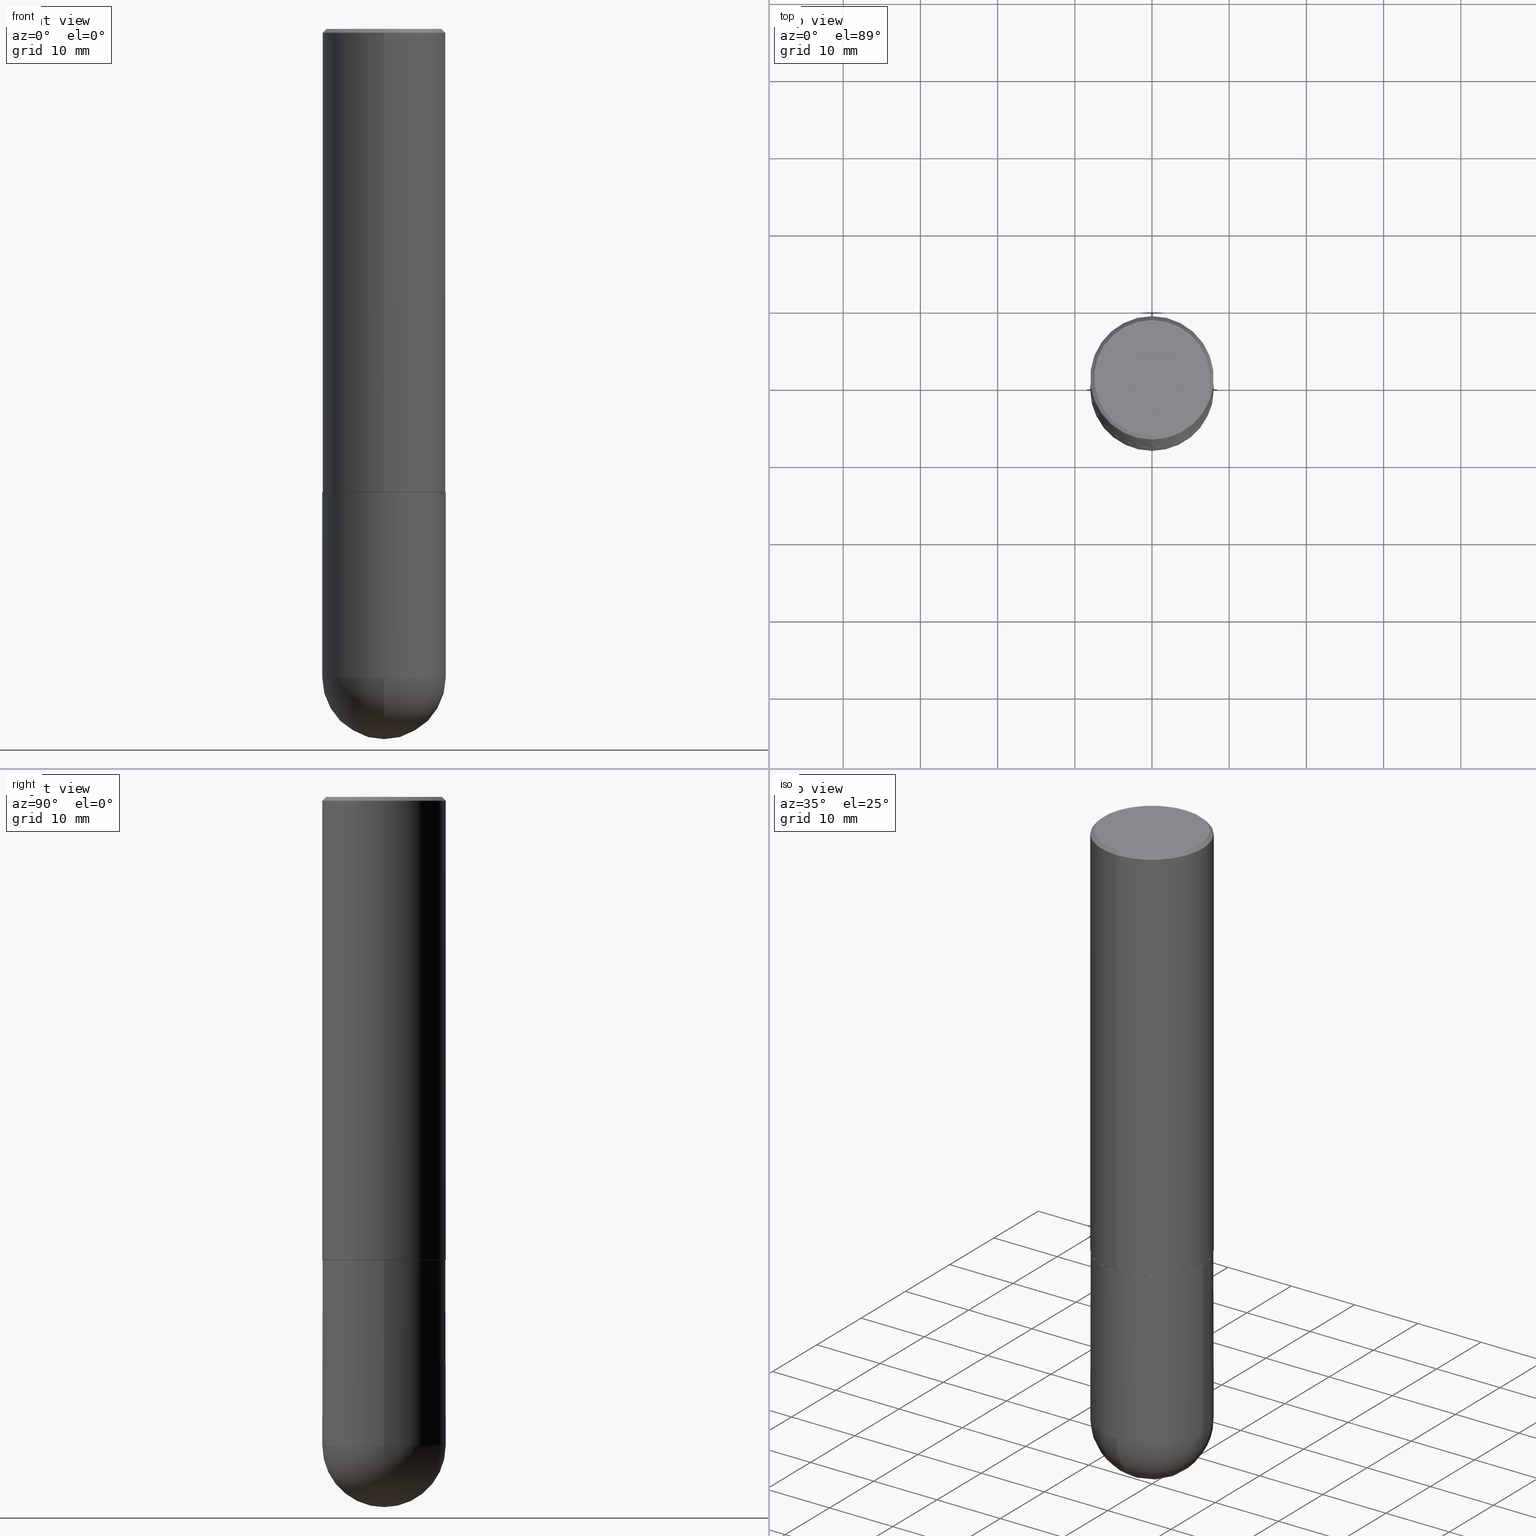
[diagram: canonical four-view strip — front | top / right | iso, engineering-drawing reading convention]
A machine part, canonical four-view strip (front | top / right | iso — engineering-drawing reading convention). The complete STEP part file that produces these views, byte-faithful:
ISO-10303-21;
HEADER;
FILE_DESCRIPTION (( 'STEP AP203' ),
    '1' );
FILE_NAME ('46348.STEP',
    '2024-04-10T11:49:54',
    ( '' ),
    ( '' ),
    'SwSTEP 2.0',
    'SolidWorks 2023',
    '' );
FILE_SCHEMA (( 'CONFIG_CONTROL_DESIGN' ));
ENDSEC;

DATA;
#1 = CARTESIAN_POINT ( 'NONE',  ( 2.237854346276465567E-15, 0.3149499999999920141, -2.361200000000000632 ) ) ;
#2 = CARTESIAN_POINT ( 'NONE',  ( 8.539834969227531055E-29, -1.310104265196035002E-14, -3.621999999999999886 ) ) ;
#3 = CARTESIAN_POINT ( 'NONE',  ( 8.087287615494557476E-29, -1.154650336162122627E-14, -3.307050000000000267 ) ) ;
#4 = CARTESIAN_POINT ( 'NONE',  ( 8.087287615494557476E-29, -1.154650336162122627E-14, -3.307050000000000267 ) ) ;
#5 = VERTEX_POINT ( 'NONE', #86 ) ;
#6 = CARTESIAN_POINT ( 'NONE',  ( -2.160713844398143363E-15, -0.3149500000000000632, -0.01999999999999896999 ) ) ;
#7 = ORIENTED_EDGE ( 'NONE', *, *, #259, .F. ) ;
#8 = DIRECTION ( 'NONE',  ( 1.000000000000000000, -6.982962677686269866E-15, 0.000000000000000000 ) ) ;
#9 = EDGE_LOOP ( 'NONE', ( #389, #94, #27, #160 ) ) ;
#10 = AXIS2_PLACEMENT_3D ( 'NONE', #3, #65, #25 ) ;
#11 = CIRCLE ( 'NONE', #155, 0.2949499999999997679 ) ;
#12 = EDGE_CURVE ( 'NONE', #233, #263, #284, .T. ) ;
#13 = EDGE_LOOP ( 'NONE', ( #321, #228, #324, #131 ) ) ;
#14 = CIRCLE ( 'NONE', #49, 0.3139500000000000624 ) ;
#15 = PERSON_AND_ORGANIZATION ( #243, #368 ) ;
#16 = CIRCLE ( 'NONE', #145, 0.3149500000000000077 ) ;
#17 = DIRECTION ( 'NONE',  ( -2.444863750846570139E-29, 3.492347812525583981E-15, 1.000000000000000000 ) ) ;
#18 = DATE_AND_TIME ( #81, #403 ) ;
#19 = CONICAL_SURFACE ( 'NONE', #357, 0.3149500000000000077, 0.7853981633974472798 ) ;
#20 = LOCAL_TIME ( 7, 49, 54.00000000000000000, #137 ) ;
#21 = CARTESIAN_POINT ( 'NONE',  ( 7.756167837580670108E-29, -1.202068572976127498E-14, -3.307049999999999823 ) ) ;
#22 = PRODUCT_RELATED_PRODUCT_CATEGORY ( 'detail', '', ( #83 ) ) ;
#23 = ORIENTED_EDGE ( 'NONE', *, *, #72, .T. ) ;
#24 =( GEOMETRIC_REPRESENTATION_CONTEXT ( 3 ) GLOBAL_UNCERTAINTY_ASSIGNED_CONTEXT ( ( #370 ) ) GLOBAL_UNIT_ASSIGNED_CONTEXT ( ( #169, #209, #334 ) ) REPRESENTATION_CONTEXT ( 'NONE', 'WORKASPACE' ) );
#25 = DIRECTION ( 'NONE',  ( 1.000000000000000000, -6.982962677686269866E-15, 0.000000000000000000 ) ) ;
#26 = DIRECTION ( 'NONE',  ( -7.105427357600999492E-15, -1.000000000000000000, 0.000000000000000000 ) ) ;
#27 = ORIENTED_EDGE ( 'NONE', *, *, #236, .T. ) ;
#28 = DIRECTION ( 'NONE',  ( -2.445468806185136597E-29, 3.491481338843145583E-15, 1.000000000000000000 ) ) ;
#29 = PLANE ( 'NONE',  #113 ) ;
#30 = ORIENTED_EDGE ( 'NONE', *, *, #386, .F. ) ;
#31 = CARTESIAN_POINT ( 'NONE',  ( 5.775257152249767833E-29, -8.249624002747934842E-15, -2.362199999999999633 ) ) ;
#32 = CARTESIAN_POINT ( 'NONE',  ( 0.000000000000000000, 0.000000000000000000, 0.000000000000000000 ) ) ;
#33 = CARTESIAN_POINT ( 'NONE',  ( 4.889727501693158145E-31, -6.984695625051194290E-17, -0.02000000000000007327 ) ) ;
#34 = PERSON_AND_ORGANIZATION ( #243, #368 ) ;
#35 = CARTESIAN_POINT ( 'NONE',  ( 0.000000000000000000, 0.000000000000000000, 0.000000000000000000 ) ) ;
#36 = FACE_OUTER_BOUND ( 'NONE', #405, .T. ) ;
#37 = VECTOR ( 'NONE', #222, 39.37007874015748143 ) ;
#38 = DIMENSIONAL_EXPONENTS ( 1.000000000000000000, 0.000000000000000000, 0.000000000000000000, 0.000000000000000000, 0.000000000000000000, 0.000000000000000000, 0.000000000000000000 ) ;
#39 = DIRECTION ( 'NONE',  ( -2.444863750846570139E-29, 3.492347812525583981E-15, 1.000000000000000000 ) ) ;
#40 = EDGE_LOOP ( 'NONE', ( #30, #212, #319, #197, #354 ) ) ;
#41 = ORIENTED_EDGE ( 'NONE', *, *, #273, .T. ) ;
#42 = ADVANCED_FACE ( 'NONE', ( #141 ), #306, .T. ) ;
#43 = VERTEX_POINT ( 'NONE', #173 ) ;
#44 = EDGE_CURVE ( 'NONE', #262, #211, #106, .T. ) ;
#45 = DIRECTION ( 'NONE',  ( 6.982962677686265922E-15, 1.000000000000000000, -3.496670018878889100E-15 ) ) ;
#46 = EDGE_LOOP ( 'NONE', ( #130, #301, #308, #105 ) ) ;
#47 = DATE_TIME_ROLE ( 'creation_date' ) ;
#48 = DIRECTION ( 'NONE',  ( 6.982962677686264344E-15, 1.000000000000000000, 0.000000000000000000 ) ) ;
#49 = AXIS2_PLACEMENT_3D ( 'NONE', #150, #312, #255 ) ;
#50 = COORDINATED_UNIVERSAL_TIME_OFFSET ( 5, 0, .BEHIND. ) ;
#51 = CIRCLE ( 'NONE', #275, 0.3149500000000000077 ) ;
#52 = SECURITY_CLASSIFICATION_LEVEL ( 'unclassified' ) ;
#53 = APPLICATION_CONTEXT ( 'configuration controlled 3d designs of mechanical parts and assemblies' ) ;
#54 = ADVANCED_FACE ( 'NONE', ( #55 ), #98, .F. ) ;
#55 = FACE_OUTER_BOUND ( 'NONE', #339, .T. ) ;
#56 = DIRECTION ( 'NONE',  ( -2.444863750846570139E-29, 3.492347812525583981E-15, 1.000000000000000000 ) ) ;
#57 = VERTEX_POINT ( 'NONE', #125 ) ;
#58 = EDGE_CURVE ( 'NONE', #189, #314, #266, .T. ) ;
#59 = DIRECTION ( 'NONE',  ( -1.000000000000000000, 6.982962677686265922E-15, -4.876176775795935793E-29 ) ) ;
#60 = LINE ( 'NONE', #283, #381 ) ;
#61 = FACE_OUTER_BOUND ( 'NONE', #371, .T. ) ;
#62 = FACE_OUTER_BOUND ( 'NONE', #92, .T. ) ;
#63 = DIRECTION ( 'NONE',  ( 1.000000000000000000, 0.000000000000000000, 0.000000000000000000 ) ) ;
#64 = EDGE_CURVE ( 'NONE', #211, #262, #14, .T. ) ;
#65 = DIRECTION ( 'NONE',  ( -2.445468806185136597E-29, 3.491481338843145583E-15, 1.000000000000000000 ) ) ;
#66 = DIRECTION ( 'NONE',  ( -2.444863750846570139E-29, 3.492347812525583981E-15, 1.000000000000000000 ) ) ;
#67 = CARTESIAN_POINT ( 'NONE',  ( 0.000000000000000000, 0.000000000000000000, 0.000000000000000000 ) ) ;
#68 = EDGE_LOOP ( 'NONE', ( #23, #394 ) ) ;
#69 = CLOSED_SHELL ( 'NONE', ( #199, #114, #42, #181, #373 ) ) ;
#70 = AXIS2_PLACEMENT_3D ( 'NONE', #33, #168, #214 ) ;
#71 = CARTESIAN_POINT ( 'NONE',  ( 5.775257152249767833E-29, -8.249624002747934842E-15, -2.362199999999999633 ) ) ;
#72 = EDGE_CURVE ( 'NONE', #43, #104, #144, .T. ) ;
#73 = VERTEX_POINT ( 'NONE', #286 ) ;
#74 = ORIENTED_EDGE ( 'NONE', *, *, #44, .F. ) ;
#75 = VECTOR ( 'NONE', #200, 39.37007874015748143 ) ;
#76 = MANIFOLD_SOLID_BREP ( 'Body-Move/Copy2[1]', #69 ) ;
#77 = COORDINATED_UNIVERSAL_TIME_OFFSET ( 5, 0, .BEHIND. ) ;
#78 = ORIENTED_EDGE ( 'NONE', *, *, #154, .F. ) ;
#79 = COORDINATED_UNIVERSAL_TIME_OFFSET ( 5, 0, .BEHIND. ) ;
#80 = CLOSED_SHELL ( 'NONE', ( #136, #205, #265, #234, #317, #264, #54, #383 ) ) ;
#81 = CALENDAR_DATE ( 2024, 10, 4 ) ;
#82 = CIRCLE ( 'NONE', #291, 0.3149500000000000077 ) ;
#83 = PRODUCT ( '46348', '46348', '', ( #247 ) ) ;
#84 = DIRECTION ( 'NONE',  ( -1.000000000000000000, 6.982962677686265133E-15, -4.883557194083112901E-29 ) ) ;
#85 = EDGE_CURVE ( 'NONE', #120, #143, #202, .T. ) ;
#86 = CARTESIAN_POINT ( 'NONE',  ( -2.237854346276355915E-15, -0.3149500000000118871, -3.307049999999999379 ) ) ;
#87 = AXIS2_PLACEMENT_3D ( 'NONE', #187, #179, #210 ) ;
#88 = EDGE_CURVE ( 'NONE', #161, #5, #132, .T. ) ;
#89 = CIRCLE ( 'NONE', #332, 0.3149500000000000077 ) ;
#90 = DIRECTION ( 'NONE',  ( -6.982962677686265922E-15, -1.000000000000000000, 3.492347812525583981E-15 ) ) ;
#91 = DIRECTION ( 'NONE',  ( -2.444863750846570139E-29, 3.492347812525583981E-15, 1.000000000000000000 ) ) ;
#92 = EDGE_LOOP ( 'NONE', ( #289, #377, #361, #78 ) ) ;
#93 = CARTESIAN_POINT ( 'NONE',  ( 2.237854346276435985E-15, 0.3149500000000001743, -1.099914943554933292E-15 ) ) ;
#94 = ORIENTED_EDGE ( 'NONE', *, *, #44, .T. ) ;
#95 = DIRECTION ( 'NONE',  ( -2.444863750846569859E-29, 3.492347812525583981E-15, 1.000000000000000000 ) ) ;
#96 = CARTESIAN_POINT ( 'NONE',  ( 7.756167837580670108E-29, -1.202068572976127498E-14, -3.307049999999999823 ) ) ;
#97 = APPLICATION_PROTOCOL_DEFINITION ( 'international standard', 'config_control_design', 1994, #217 ) ;
#98 = PLANE ( 'NONE',  #331 ) ;
#99 = DIRECTION ( 'NONE',  ( 6.982962677686265922E-15, 1.000000000000000000, -3.492347812525583981E-15 ) ) ;
#100 = FACE_OUTER_BOUND ( 'NONE', #176, .T. ) ;
#101 = CARTESIAN_POINT ( 'NONE',  ( 8.087287615494557476E-29, -1.154650336162122627E-14, -3.307050000000000267 ) ) ;
#102 = ORIENTED_EDGE ( 'NONE', *, *, #305, .T. ) ;
#103 = FACE_OUTER_BOUND ( 'NONE', #278, .T. ) ;
#104 = VERTEX_POINT ( 'NONE', #315 ) ;
#105 = ORIENTED_EDGE ( 'NONE', *, *, #400, .F. ) ;
#106 = CIRCLE ( 'NONE', #225, 0.3139500000000000624 ) ;
#107 = AXIS2_PLACEMENT_3D ( 'NONE', #123, #249, #126 ) ;
#108 = DATE_AND_TIME ( #328, #20 ) ;
#109 = DATE_AND_TIME ( #399, #268 ) ;
#110 = APPROVAL_ROLE ( '' ) ;
#111 = AXIS2_PLACEMENT_3D ( 'NONE', #299, #17, #90 ) ;
#112 = AXIS2_PLACEMENT_3D ( 'NONE', #122, #342, #152 ) ;
#113 = AXIS2_PLACEMENT_3D ( 'NONE', #151, #281, #99 ) ;
#114 = ADVANCED_FACE ( 'NONE', ( #218 ), #288, .T. ) ;
#115 = EDGE_CURVE ( 'NONE', #189, #143, #129, .T. ) ;
#116 = AXIS2_PLACEMENT_3D ( 'NONE', #412, #56, #307 ) ;
#117 = ORIENTED_EDGE ( 'NONE', *, *, #88, .F. ) ;
#118 = DIRECTION ( 'NONE',  ( 1.000000000000000000, -6.982962677686269866E-15, 0.000000000000000000 ) ) ;
#119 = CARTESIAN_POINT ( 'NONE',  ( -0.3149500000000000077, 2.237854346276435590E-15, -1.549218606675782676E-29 ) ) ;
#120 = VERTEX_POINT ( 'NONE', #6 ) ;
#121 = CC_DESIGN_PERSON_AND_ORGANIZATION_ASSIGNMENT ( #344, #182, ( #83 ) ) ;
#122 = CARTESIAN_POINT ( 'NONE',  ( 5.775257152249767833E-29, -8.249624002747934842E-15, -2.362199999999999633 ) ) ;
#123 = CARTESIAN_POINT ( 'NONE',  ( 0.000000000000000000, 0.000000000000000000, 0.000000000000000000 ) ) ;
#124 = CONICAL_SURFACE ( 'NONE', #112, 0.3139500000000000624, 0.7853981633975165577 ) ;
#125 = CARTESIAN_POINT ( 'NONE',  ( 2.199284095337369546E-15, 0.3149499999999882394, -3.307050000000001599 ) ) ;
#126 = DIRECTION ( 'NONE',  ( -6.982962677686264344E-15, -1.000000000000000000, 3.492347812525583981E-15 ) ) ;
#127 = DIRECTION ( 'NONE',  ( -1.000000000000000000, 6.982962677686265133E-15, -4.883557194083112901E-29 ) ) ;
#128 = DIRECTION ( 'NONE',  ( -2.445468806185136597E-29, 3.491481338843145583E-15, 1.000000000000000000 ) ) ;
#129 = LINE ( 'NONE', #93, #194 ) ;
#130 = ORIENTED_EDGE ( 'NONE', *, *, #270, .F. ) ;
#131 = ORIENTED_EDGE ( 'NONE', *, *, #154, .T. ) ;
#132 = CIRCLE ( 'NONE', #10, 0.3149500000000000077 ) ;
#133 = ORIENTED_EDGE ( 'NONE', *, *, #64, .F. ) ;
#134 = AXIS2_PLACEMENT_3D ( 'NONE', #67, #39, #159 ) ;
#135 = SHAPE_DEFINITION_REPRESENTATION ( #404, #362 ) ;
#136 = ADVANCED_FACE ( 'NONE', ( #61 ), #124, .T. ) ;
#137 = COORDINATED_UNIVERSAL_TIME_OFFSET ( 5, 0, .BEHIND. ) ;
#138 = AXIS2_PLACEMENT_3D ( 'NONE', #251, #127, #411 ) ;
#139 = LOCAL_TIME ( 7, 49, 54.00000000000000000, #79 ) ;
#140 = APPROVAL ( #240, 'UNSPECIFIED' ) ;
#141 = FACE_OUTER_BOUND ( 'NONE', #46, .T. ) ;
#142 = LENGTH_MEASURE_WITH_UNIT ( LENGTH_MEASURE( 0.02539999999999999897 ), #272 );
#143 = VERTEX_POINT ( 'NONE', #345 ) ;
#144 = CIRCLE ( 'NONE', #390, 0.3149500000000000077 ) ;
#145 = AXIS2_PLACEMENT_3D ( 'NONE', #101, #323, #8 ) ;
#146 = DIRECTION ( 'NONE',  ( 1.000000000000000000, -6.982962677686266711E-15, 0.000000000000000000 ) ) ;
#147 = DIRECTION ( 'NONE',  ( -2.444863750846570419E-29, 3.492347812525583981E-15, 1.000000000000000000 ) ) ;
#148 = ORIENTED_EDGE ( 'NONE', *, *, #229, .T. ) ;
#149 = APPROVAL_STATUS ( 'not_yet_approved' ) ;
#150 = CARTESIAN_POINT ( 'NONE',  ( 5.775257152249767833E-29, -8.249624002747934842E-15, -2.362199999999999633 ) ) ;
#151 = CARTESIAN_POINT ( 'NONE',  ( 2.059624841783562486E-15, 0.2949499999999997679, -9.125561106203411769E-16 ) ) ;
#152 = DIRECTION ( 'NONE',  ( -6.982962677686266711E-15, -1.000000000000000000, 3.480615376543096131E-15 ) ) ;
#153 = CARTESIAN_POINT ( 'NONE',  ( -2.199284095337290265E-15, -0.3149500000000001743, 1.099914943554933292E-15 ) ) ;
#154 = EDGE_CURVE ( 'NONE', #143, #120, #250, .T. ) ;
#155 = AXIS2_PLACEMENT_3D ( 'NONE', #175, #66, #219 ) ;
#156 = DIRECTION ( 'NONE',  ( -6.982962677686266711E-15, -1.000000000000000000, 3.480615376543096131E-15 ) ) ;
#157 = EDGE_CURVE ( 'NONE', #57, #161, #89, .T. ) ;
#158 = CARTESIAN_POINT ( 'NONE',  ( 5.776686413970529753E-29, -8.247577218615278049E-15, -2.362199999999999633 ) ) ;
#159 = DIRECTION ( 'NONE',  ( -6.982962677686264344E-15, -1.000000000000000000, 3.492347812525583981E-15 ) ) ;
#160 = ORIENTED_EDGE ( 'NONE', *, *, #58, .F. ) ;
#161 = VERTEX_POINT ( 'NONE', #384 ) ;
#162 = AXIS2_PLACEMENT_3D ( 'NONE', #96, #341, #26 ) ;
#163 = CC_DESIGN_APPROVAL ( #140, ( #304 ) ) ;
#164 = CARTESIAN_POINT ( 'NONE',  ( -2.192301132659546270E-15, -0.3139500000000083335, -2.362199999999998745 ) ) ;
#165 = PERSON_AND_ORGANIZATION ( #243, #368 ) ;
#166 = APPROVAL_DATE_TIME ( #238, #140 ) ;
#167 = EDGE_LOOP ( 'NONE', ( #7, #372, #117, #224 ) ) ;
#168 = DIRECTION ( 'NONE',  ( 2.444863750846570139E-29, -3.492347812525583981E-15, -1.000000000000000000 ) ) ;
#169 =( CONVERSION_BASED_UNIT ( 'INCH', #142 ) LENGTH_UNIT ( ) NAMED_UNIT ( #38 ) );
#170 = PERSON_AND_ORGANIZATION_ROLE ( 'creator' ) ;
#171 = CONICAL_SURFACE ( 'NONE', #70, 0.3149500000000000077, 0.7853981633974472798 ) ;
#172 = APPROVAL ( #149, 'UNSPECIFIED' ) ;
#173 = CARTESIAN_POINT ( 'NONE',  ( 0.3149500000000000077, -1.044686131395256792E-14, -2.362199999999999633 ) ) ;
#174 = DIRECTION ( 'NONE',  ( -2.445468806185136597E-29, 3.491481338843145583E-15, 1.000000000000000000 ) ) ;
#175 = CARTESIAN_POINT ( 'NONE',  ( -5.746010551977135930E-45, 8.207846909668386328E-31, 2.350237533681578796E-16 ) ) ;
#176 = EDGE_LOOP ( 'NONE', ( #102, #230, #410, #356 ) ) ;
#177 = CYLINDRICAL_SURFACE ( 'NONE', #186, 0.3149500000000000077 ) ;
#178 = DIRECTION ( 'NONE',  ( -4.851104656540958753E-15, -0.7071067811865492381, -0.7071067811865457964 ) ) ;
#179 = DIRECTION ( 'NONE',  ( -2.444863750846570139E-29, 3.492347812525583981E-15, 1.000000000000000000 ) ) ;
#180 = DIRECTION ( 'NONE',  ( 4.937700262164542520E-15, 0.7071067811865443531, -0.7071067811865506814 ) ) ;
#181 = ADVANCED_FACE ( 'NONE', ( #213 ), #244, .F. ) ;
#182 = PERSON_AND_ORGANIZATION_ROLE ( 'design_owner' ) ;
#183 = CC_DESIGN_DATE_AND_TIME_ASSIGNMENT ( #109, #47, ( #300 ) ) ;
#184 = FACE_OUTER_BOUND ( 'NONE', #290, .T. ) ;
#185 = CYLINDRICAL_SURFACE ( 'NONE', #107, 0.3149500000000001743 ) ;
#186 = AXIS2_PLACEMENT_3D ( 'NONE', #35, #28, #387 ) ;
#187 = CARTESIAN_POINT ( 'NONE',  ( 5.772812288498920287E-29, -8.246131654935407523E-15, -2.361199999999999743 ) ) ;
#188 = ORIENTED_EDGE ( 'NONE', *, *, #236, .F. ) ;
#189 = VERTEX_POINT ( 'NONE', #1 ) ;
#190 = ORIENTED_EDGE ( 'NONE', *, *, #393, .F. ) ;
#191 = CARTESIAN_POINT ( 'NONE',  ( -2.192301132659546270E-15, -0.3139500000000083335, -2.362199999999998745 ) ) ;
#192 = CC_DESIGN_PERSON_AND_ORGANIZATION_ASSIGNMENT ( #302, #237, ( #304 ) ) ;
#193 = CARTESIAN_POINT ( 'NONE',  ( 2.129454468560426178E-15, 0.2949499999999997679, -7.950442339362623110E-16 ) ) ;
#194 = VECTOR ( 'NONE', #318, 39.37007874015748143 ) ;
#195 = CC_DESIGN_APPROVAL ( #172, ( #300 ) ) ;
#196 = DIRECTION ( 'NONE',  ( 5.024295867788404755E-15, 0.7071067811865981989, 0.7071067811864968355 ) ) ;
#197 = ORIENTED_EDGE ( 'NONE', *, *, #393, .T. ) ;
#198 = CALENDAR_DATE ( 2024, 10, 4 ) ;
#199 = ADVANCED_FACE ( 'NONE', ( #184 ), #177, .T. ) ;
#200 = DIRECTION ( 'NONE',  ( -4.937700262164884886E-15, -0.7071067811865933139, 0.7071067811865017205 ) ) ;
#201 = CALENDAR_DATE ( 2024, 10, 4 ) ;
#202 = CIRCLE ( 'NONE', #258, 0.3149500000000000077 ) ;
#203 = APPROVAL_PERSON_ORGANIZATION ( #165, #347, #110 ) ;
#204 = PERSON_AND_ORGANIZATION ( #243, #368 ) ;
#205 = ADVANCED_FACE ( 'NONE', ( #100 ), #348, .T. ) ;
#206 = PERSON_AND_ORGANIZATION ( #243, #368 ) ;
#207 = CC_DESIGN_SECURITY_CLASSIFICATION ( #304, ( #260 ) ) ;
#208 = DIRECTION ( 'NONE',  ( 6.982962677686265133E-15, 1.000000000000000000, -3.469564049740291586E-15 ) ) ;
#209 =( NAMED_UNIT ( * ) PLANE_ANGLE_UNIT ( ) SI_UNIT ( $, .RADIAN. ) );
#210 = DIRECTION ( 'NONE',  ( -6.982962677686265922E-15, -1.000000000000000000, 3.469564049740290009E-15 ) ) ;
#211 = VERTEX_POINT ( 'NONE', #191 ) ;
#212 = ORIENTED_EDGE ( 'NONE', *, *, #88, .T. ) ;
#213 = FACE_OUTER_BOUND ( 'NONE', #68, .T. ) ;
#214 = DIRECTION ( 'NONE',  ( 6.982962677686265922E-15, 1.000000000000000000, -3.496670018878889100E-15 ) ) ;
#215 = APPROVAL_ROLE ( '' ) ;
#216 = CIRCLE ( 'NONE', #116, 0.3149500000000002853 ) ;
#217 = APPLICATION_CONTEXT ( 'configuration controlled 3d designs of mechanical parts and assemblies' ) ;
#218 = FACE_OUTER_BOUND ( 'NONE', #167, .T. ) ;
#219 = DIRECTION ( 'NONE',  ( -6.982962677686265922E-15, -1.000000000000000000, 3.492347812525583981E-15 ) ) ;
#220 = CARTESIAN_POINT ( 'NONE',  ( 0.000000000000000000, 0.000000000000000000, 0.000000000000000000 ) ) ;
#221 = CARTESIAN_POINT ( 'NONE',  ( 2.199284095337347063E-15, 0.3149499999999917366, -2.362200000000000966 ) ) ;
#222 = DIRECTION ( 'NONE',  ( -2.445468806185136877E-29, 3.491481338843145188E-15, 1.000000000000000000 ) ) ;
#223 = DIRECTION ( 'NONE',  ( -6.982962677686265922E-15, -1.000000000000000000, 3.496670018878889100E-15 ) ) ;
#224 = ORIENTED_EDGE ( 'NONE', *, *, #157, .F. ) ;
#225 = AXIS2_PLACEMENT_3D ( 'NONE', #31, #91, #156 ) ;
#226 = AXIS2_PLACEMENT_3D ( 'NONE', #360, #329, #48 ) ;
#227 = CARTESIAN_POINT ( 'NONE',  ( -2.092108864420427242E-15, -0.2949499999999997679, 1.265091740672577972E-15 ) ) ;
#228 = ORIENTED_EDGE ( 'NONE', *, *, #273, .F. ) ;
#229 = EDGE_CURVE ( 'NONE', #73, #57, #16, .T. ) ;
#230 = ORIENTED_EDGE ( 'NONE', *, *, #115, .T. ) ;
#231 = EDGE_CURVE ( 'NONE', #262, #189, #261, .T. ) ;
#232 = LINE ( 'NONE', #164, #75 ) ;
#233 = VERTEX_POINT ( 'NONE', #227 ) ;
#234 = ADVANCED_FACE ( 'NONE', ( #235 ), #19, .T. ) ;
#235 = FACE_OUTER_BOUND ( 'NONE', #13, .T. ) ;
#236 = EDGE_CURVE ( 'NONE', #211, #314, #232, .T. ) ;
#237 = PERSON_AND_ORGANIZATION_ROLE ( 'classification_officer' ) ;
#238 = DATE_AND_TIME ( #198, #239 ) ;
#239 = LOCAL_TIME ( 7, 49, 54.00000000000000000, #330 ) ;
#240 = APPROVAL_STATUS ( 'not_yet_approved' ) ;
#241 = CONICAL_SURFACE ( 'NONE', #303, 0.3139500000000000624, 0.7853981633975165577 ) ;
#242 = ORIENTED_EDGE ( 'NONE', *, *, #305, .F. ) ;
#243 = PERSON ( 'UNSPECIFIED', 'UNSPECIFIED', 'UNSPECIFIED', ('UNSPECIFIED'), ('UNSPECIFIED'), ('UNSPECIFIED') ) ;
#244 = PLANE ( 'NONE',  #285 ) ;
#245 = LINE ( 'NONE', #153, #351 ) ;
#246 = ORIENTED_EDGE ( 'NONE', *, *, #386, .T. ) ;
#247 = MECHANICAL_CONTEXT ( 'NONE', #53, 'mechanical' ) ;
#248 = DIRECTION ( 'NONE',  ( -6.982962677686265922E-15, -1.000000000000000000, 3.492347812525583981E-15 ) ) ;
#249 = DIRECTION ( 'NONE',  ( -2.444863750846570139E-29, 3.492347812525583981E-15, 1.000000000000000000 ) ) ;
#250 = CIRCLE ( 'NONE', #391, 0.3149500000000000077 ) ;
#251 = CARTESIAN_POINT ( 'NONE',  ( 7.756167837580670108E-29, -1.202068572976127498E-14, -3.307049999999999823 ) ) ;
#252 = DIRECTION ( 'NONE',  ( 1.000000000000000000, -6.982962677686266711E-15, 0.000000000000000000 ) ) ;
#253 = DIRECTION ( 'NONE',  ( 2.438088387897960049E-29, -3.491481338843145188E-15, -1.000000000000000000 ) ) ;
#254 = DIRECTION ( 'NONE',  ( -2.445468806185136877E-29, 3.491481338843145188E-15, 1.000000000000000000 ) ) ;
#255 = DIRECTION ( 'NONE',  ( -6.982962677686266711E-15, -1.000000000000000000, 3.480615376543096131E-15 ) ) ;
#256 = ORIENTED_EDGE ( 'NONE', *, *, #335, .T. ) ;
#257 = DIRECTION ( 'NONE',  ( -6.982962677686266711E-15, -1.000000000000000000, 3.480615376543096131E-15 ) ) ;
#258 = AXIS2_PLACEMENT_3D ( 'NONE', #338, #375, #310 ) ;
#259 = EDGE_CURVE ( 'NONE', #274, #57, #397, .T. ) ;
#260 = PRODUCT_DEFINITION_FORMATION_WITH_SPECIFIED_SOURCE ( 'ANY', '', #83, .NOT_KNOWN. ) ;
#261 = LINE ( 'NONE', #395, #337 ) ;
#262 = VERTEX_POINT ( 'NONE', #353 ) ;
#263 = VERTEX_POINT ( 'NONE', #193 ) ;
#264 = ADVANCED_FACE ( 'NONE', ( #320 ), #241, .T. ) ;
#265 = ADVANCED_FACE ( 'NONE', ( #103 ), #171, .T. ) ;
#266 = CIRCLE ( 'NONE', #87, 0.3149500000000002853 ) ;
#267 = VECTOR ( 'NONE', #254, 39.37007874015748143 ) ;
#268 = LOCAL_TIME ( 7, 49, 54.00000000000000000, #50 ) ;
#269 = APPROVAL_DATE_TIME ( #18, #347 ) ;
#270 = EDGE_CURVE ( 'NONE', #274, #5, #298, .T. ) ;
#271 = PERSON_AND_ORGANIZATION_ROLE ( 'creator' ) ;
#272 =( LENGTH_UNIT ( ) NAMED_UNIT ( * ) SI_UNIT ( $, .METRE. ) );
#273 = EDGE_CURVE ( 'NONE', #263, #233, #11, .T. ) ;
#274 = VERTEX_POINT ( 'NONE', #2 ) ;
#275 = AXIS2_PLACEMENT_3D ( 'NONE', #4, #388, #277 ) ;
#276 = CARTESIAN_POINT ( 'NONE',  ( 4.889727501693158145E-31, -6.984695625051194290E-17, -0.02000000000000007327 ) ) ;
#277 = DIRECTION ( 'NONE',  ( 1.000000000000000000, -6.982962677686269866E-15, 0.000000000000000000 ) ) ;
#278 = EDGE_LOOP ( 'NONE', ( #296, #256, #279, #407 ) ) ;
#279 = ORIENTED_EDGE ( 'NONE', *, *, #85, .T. ) ;
#280 = CARTESIAN_POINT ( 'NONE',  ( 5.776686413970529753E-29, -8.247577218615278049E-15, -2.362199999999999633 ) ) ;
#281 = DIRECTION ( 'NONE',  ( 2.444863750846569859E-29, -3.492347812525583981E-15, -1.000000000000000000 ) ) ;
#282 = DIRECTION ( 'NONE',  ( -2.444863750846570139E-29, 3.492347812525583981E-15, 1.000000000000000000 ) ) ;
#283 = CARTESIAN_POINT ( 'NONE',  ( -2.160713844398143363E-15, -0.3149500000000000632, -0.01999999999999896999 ) ) ;
#284 = CIRCLE ( 'NONE', #111, 0.2949499999999997679 ) ;
#285 = AXIS2_PLACEMENT_3D ( 'NONE', #221, #253, #59 ) ;
#286 = CARTESIAN_POINT ( 'NONE',  ( 0.3149500000000000077, -1.209632438545554361E-14, -3.307050000000000267 ) ) ;
#287 = LINE ( 'NONE', #346, #267 ) ;
#288 = SPHERICAL_SURFACE ( 'NONE', #138, 0.3149500000000001743 ) ;
#289 = ORIENTED_EDGE ( 'NONE', *, *, #115, .F. ) ;
#290 = EDGE_LOOP ( 'NONE', ( #349, #246, #392, #190, #148 ) ) ;
#291 = AXIS2_PLACEMENT_3D ( 'NONE', #158, #380, #252 ) ;
#292 = APPROVAL_PERSON_ORGANIZATION ( #34, #172, #215 ) ;
#293 = ORIENTED_EDGE ( 'NONE', *, *, #231, .T. ) ;
#294 = CC_DESIGN_DATE_AND_TIME_ASSIGNMENT ( #398, #359, ( #304 ) ) ;
#295 = DIRECTION ( 'NONE',  ( -2.444863750846570139E-29, 3.492347812525583981E-15, 1.000000000000000000 ) ) ;
#296 = ORIENTED_EDGE ( 'NONE', *, *, #12, .F. ) ;
#297 = PERSON_AND_ORGANIZATION ( #243, #368 ) ;
#298 = CIRCLE ( 'NONE', #162, 0.3149500000000001743 ) ;
#299 = CARTESIAN_POINT ( 'NONE',  ( -5.746010551977135930E-45, 8.207846909668386328E-31, 2.350237533681578796E-16 ) ) ;
#300 = PRODUCT_DEFINITION ( 'UNKNOWN', '', #260, #336 ) ;
#301 = ORIENTED_EDGE ( 'NONE', *, *, #259, .T. ) ;
#302 = PERSON_AND_ORGANIZATION ( #243, #368 ) ;
#303 = AXIS2_PLACEMENT_3D ( 'NONE', #71, #295, #257 ) ;
#304 = SECURITY_CLASSIFICATION ( '', '', #52 ) ;
#305 = EDGE_CURVE ( 'NONE', #314, #189, #216, .T. ) ;
#306 = SPHERICAL_SURFACE ( 'NONE', #401, 0.3149500000000001743 ) ;
#307 = DIRECTION ( 'NONE',  ( -6.982962677686265922E-15, -1.000000000000000000, 3.469564049740290009E-15 ) ) ;
#308 = ORIENTED_EDGE ( 'NONE', *, *, #229, .F. ) ;
#309 = AXIS2_PLACEMENT_3D ( 'NONE', #220, #378, #63 ) ;
#310 = DIRECTION ( 'NONE',  ( -6.982962677686265922E-15, -1.000000000000000000, 3.496670018878889100E-15 ) ) ;
#311 = LINE ( 'NONE', #385, #325 ) ;
#312 = DIRECTION ( 'NONE',  ( -2.444863750846570139E-29, 3.492347812525583981E-15, 1.000000000000000000 ) ) ;
#313 = CYLINDRICAL_SURFACE ( 'NONE', #402, 0.3149500000000000077 ) ;
#314 = VERTEX_POINT ( 'NONE', #343 ) ;
#315 = CARTESIAN_POINT ( 'NONE',  ( -0.3149500000000000077, -7.659185943841816172E-15, -2.362199999999999633 ) ) ;
#316 = DIRECTION ( 'NONE',  ( 1.000000000000000000, -6.982962677686266711E-15, 4.876176775795936353E-29 ) ) ;
#317 = ADVANCED_FACE ( 'NONE', ( #62 ), #185, .T. ) ;
#318 = DIRECTION ( 'NONE',  ( -2.444863750846570419E-29, 3.492347812525583981E-15, 1.000000000000000000 ) ) ;
#319 = ORIENTED_EDGE ( 'NONE', *, *, #400, .T. ) ;
#320 = FACE_OUTER_BOUND ( 'NONE', #9, .T. ) ;
#321 = ORIENTED_EDGE ( 'NONE', *, *, #335, .F. ) ;
#322 = EDGE_CURVE ( 'NONE', #104, #43, #82, .T. ) ;
#323 = DIRECTION ( 'NONE',  ( -2.445468806185136597E-29, 3.491481338843145583E-15, 1.000000000000000000 ) ) ;
#324 = ORIENTED_EDGE ( 'NONE', *, *, #363, .T. ) ;
#325 = VECTOR ( 'NONE', #180, 39.37007874015748143 ) ;
#326 = CC_DESIGN_PERSON_AND_ORGANIZATION_ASSIGNMENT ( #297, #170, ( #260 ) ) ;
#327 = DIRECTION ( 'NONE',  ( 2.444863750846570139E-29, -3.492347812525583981E-15, -1.000000000000000000 ) ) ;
#328 = CALENDAR_DATE ( 2024, 10, 4 ) ;
#329 = DIRECTION ( 'NONE',  ( 1.000000000000000000, -6.982962677686265922E-15, 4.883557194083112340E-29 ) ) ;
#330 = COORDINATED_UNIVERSAL_TIME_OFFSET ( 5, 0, .BEHIND. ) ;
#331 = AXIS2_PLACEMENT_3D ( 'NONE', #379, #95, #248 ) ;
#332 = AXIS2_PLACEMENT_3D ( 'NONE', #408, #340, #118 ) ;
#333 = APPROVAL_PERSON_ORGANIZATION ( #15, #140, #369 ) ;
#334 =( NAMED_UNIT ( * ) SI_UNIT ( $, .STERADIAN. ) SOLID_ANGLE_UNIT ( ) );
#335 = EDGE_CURVE ( 'NONE', #233, #120, #60, .T. ) ;
#336 = DESIGN_CONTEXT ( 'detailed design', #217, 'design' ) ;
#337 = VECTOR ( 'NONE', #196, 39.37007874015748143 ) ;
#338 = CARTESIAN_POINT ( 'NONE',  ( 4.889727501693158145E-31, -6.984695625051194290E-17, -0.02000000000000007327 ) ) ;
#339 = EDGE_LOOP ( 'NONE', ( #133, #74 ) ) ;
#340 = DIRECTION ( 'NONE',  ( -2.445468806185136597E-29, 3.491481338843145583E-15, 1.000000000000000000 ) ) ;
#341 = DIRECTION ( 'NONE',  ( -1.000000000000000000, 7.105427357601001070E-15, -4.926315508542082329E-29 ) ) ;
#342 = DIRECTION ( 'NONE',  ( -2.444863750846570139E-29, 3.492347812525583981E-15, 1.000000000000000000 ) ) ;
#343 = CARTESIAN_POINT ( 'NONE',  ( -2.199284095337233467E-15, -0.3149500000000085564, -2.361199999999998411 ) ) ;
#344 = PERSON_AND_ORGANIZATION ( #243, #368 ) ;
#345 = CARTESIAN_POINT ( 'NONE',  ( 2.199284095337289871E-15, 0.3149499999999999522, -0.02000000000000117309 ) ) ;
#346 = CARTESIAN_POINT ( 'NONE',  ( 0.3149500000000000077, -2.199284095337289871E-15, 1.535751875536930130E-29 ) ) ;
#347 = APPROVAL ( #366, 'UNSPECIFIED' ) ;
#348 = CYLINDRICAL_SURFACE ( 'NONE', #134, 0.3149500000000001743 ) ;
#349 = ORIENTED_EDGE ( 'NONE', *, *, #157, .T. ) ;
#350 = MANIFOLD_SOLID_BREP ( 'Body-Move/Copy2[2]', #80 ) ;
#351 = VECTOR ( 'NONE', #147, 39.37007874015748143 ) ;
#352 = CC_DESIGN_APPROVAL ( #347, ( #260 ) ) ;
#353 = CARTESIAN_POINT ( 'NONE',  ( 2.234301632597693462E-15, 0.3139499999999917912, -2.362200000000000966 ) ) ;
#354 = ORIENTED_EDGE ( 'NONE', *, *, #322, .F. ) ;
#355 = ORIENTED_EDGE ( 'NONE', *, *, #12, .T. ) ;
#356 = ORIENTED_EDGE ( 'NONE', *, *, #374, .F. ) ;
#357 = AXIS2_PLACEMENT_3D ( 'NONE', #358, #327, #45 ) ;
#358 = CARTESIAN_POINT ( 'NONE',  ( 4.889727501693158145E-31, -6.984695625051194290E-17, -0.02000000000000007327 ) ) ;
#359 = DATE_TIME_ROLE ( 'classification_date' ) ;
#360 = CARTESIAN_POINT ( 'NONE',  ( 7.756167837580670108E-29, -1.202068572976127498E-14, -3.307049999999999823 ) ) ;
#361 = ORIENTED_EDGE ( 'NONE', *, *, #374, .T. ) ;
#362 = ADVANCED_BREP_SHAPE_REPRESENTATION ( '46348', ( #76, #350, #309 ), #24 ) ;
#363 = EDGE_CURVE ( 'NONE', #263, #143, #311, .T. ) ;
#364 = PERSON_AND_ORGANIZATION_ROLE ( 'design_supplier' ) ;
#365 = CC_DESIGN_PERSON_AND_ORGANIZATION_ASSIGNMENT ( #206, #271, ( #300 ) ) ;
#366 = APPROVAL_STATUS ( 'not_yet_approved' ) ;
#367 = ORIENTED_EDGE ( 'NONE', *, *, #64, .T. ) ;
#368 = ORGANIZATION ( 'UNSPECIFIED', 'UNSPECIFIED', '' ) ;
#369 = APPROVAL_ROLE ( '' ) ;
#370 = UNCERTAINTY_MEASURE_WITH_UNIT (LENGTH_MEASURE( 1.000000000000000082E-05 ), #169, 'distance_accuracy_value', 'NONE');
#371 = EDGE_LOOP ( 'NONE', ( #367, #293, #242, #188 ) ) ;
#372 = ORIENTED_EDGE ( 'NONE', *, *, #270, .T. ) ;
#373 = ADVANCED_FACE ( 'NONE', ( #376 ), #313, .T. ) ;
#374 = EDGE_CURVE ( 'NONE', #314, #120, #245, .T. ) ;
#375 = DIRECTION ( 'NONE',  ( -2.444863750846570139E-29, 3.492347812525583981E-15, 1.000000000000000000 ) ) ;
#376 = FACE_OUTER_BOUND ( 'NONE', #40, .T. ) ;
#377 = ORIENTED_EDGE ( 'NONE', *, *, #58, .T. ) ;
#378 = DIRECTION ( 'NONE',  ( 0.000000000000000000, 0.000000000000000000, 1.000000000000000000 ) ) ;
#379 = CARTESIAN_POINT ( 'NONE',  ( 5.775257152249767833E-29, -8.249624002747934842E-15, -2.362199999999999633 ) ) ;
#380 = DIRECTION ( 'NONE',  ( -2.445468806185136597E-29, 3.491481338843145583E-15, 1.000000000000000000 ) ) ;
#381 = VECTOR ( 'NONE', #178, 39.37007874015748143 ) ;
#382 = APPLICATION_PROTOCOL_DEFINITION ( 'international standard', 'config_control_design', 1994, #53 ) ;
#383 = ADVANCED_FACE ( 'NONE', ( #36 ), #29, .F. ) ;
#384 = CARTESIAN_POINT ( 'NONE',  ( -0.3149500000000000077, -7.659185943841817750E-15, -3.307050000000000267 ) ) ;
#385 = CARTESIAN_POINT ( 'NONE',  ( 2.199284095337289871E-15, 0.3149499999999999522, -0.02000000000000117309 ) ) ;
#386 = EDGE_CURVE ( 'NONE', #161, #104, #409, .T. ) ;
#387 = DIRECTION ( 'NONE',  ( 1.000000000000000000, -6.982962677686266711E-15, 4.876176775795936353E-29 ) ) ;
#388 = DIRECTION ( 'NONE',  ( -2.445468806185136597E-29, 3.491481338843145583E-15, 1.000000000000000000 ) ) ;
#389 = ORIENTED_EDGE ( 'NONE', *, *, #231, .F. ) ;
#390 = AXIS2_PLACEMENT_3D ( 'NONE', #280, #174, #146 ) ;
#391 = AXIS2_PLACEMENT_3D ( 'NONE', #276, #282, #223 ) ;
#392 = ORIENTED_EDGE ( 'NONE', *, *, #72, .F. ) ;
#393 = EDGE_CURVE ( 'NONE', #73, #43, #287, .T. ) ;
#394 = ORIENTED_EDGE ( 'NONE', *, *, #322, .T. ) ;
#395 = CARTESIAN_POINT ( 'NONE',  ( 2.230748918918892169E-15, 0.3139499999999917912, -2.362200000000000966 ) ) ;
#396 = APPROVAL_DATE_TIME ( #108, #172 ) ;
#397 = CIRCLE ( 'NONE', #226, 0.3149500000000001743 ) ;
#398 = DATE_AND_TIME ( #201, #139 ) ;
#399 = CALENDAR_DATE ( 2024, 10, 4 ) ;
#400 = EDGE_CURVE ( 'NONE', #5, #73, #51, .T. ) ;
#401 = AXIS2_PLACEMENT_3D ( 'NONE', #21, #84, #208 ) ;
#402 = AXIS2_PLACEMENT_3D ( 'NONE', #32, #128, #316 ) ;
#403 = LOCAL_TIME ( 7, 49, 54.00000000000000000, #77 ) ;
#404 = PRODUCT_DEFINITION_SHAPE ( 'NONE', 'NONE',  #300 ) ;
#405 = EDGE_LOOP ( 'NONE', ( #41, #355 ) ) ;
#406 = CC_DESIGN_PERSON_AND_ORGANIZATION_ASSIGNMENT ( #204, #364, ( #260 ) ) ;
#407 = ORIENTED_EDGE ( 'NONE', *, *, #363, .F. ) ;
#408 = CARTESIAN_POINT ( 'NONE',  ( 8.087287615494557476E-29, -1.154650336162122627E-14, -3.307050000000000267 ) ) ;
#409 = LINE ( 'NONE', #119, #37 ) ;
#410 = ORIENTED_EDGE ( 'NONE', *, *, #85, .F. ) ;
#411 = DIRECTION ( 'NONE',  ( 6.982962677686265133E-15, 1.000000000000000000, -3.469564049740291586E-15 ) ) ;
#412 = CARTESIAN_POINT ( 'NONE',  ( 5.772812288498920287E-29, -8.246131654935407523E-15, -2.361199999999999743 ) ) ;
ENDSEC;
END-ISO-10303-21;
